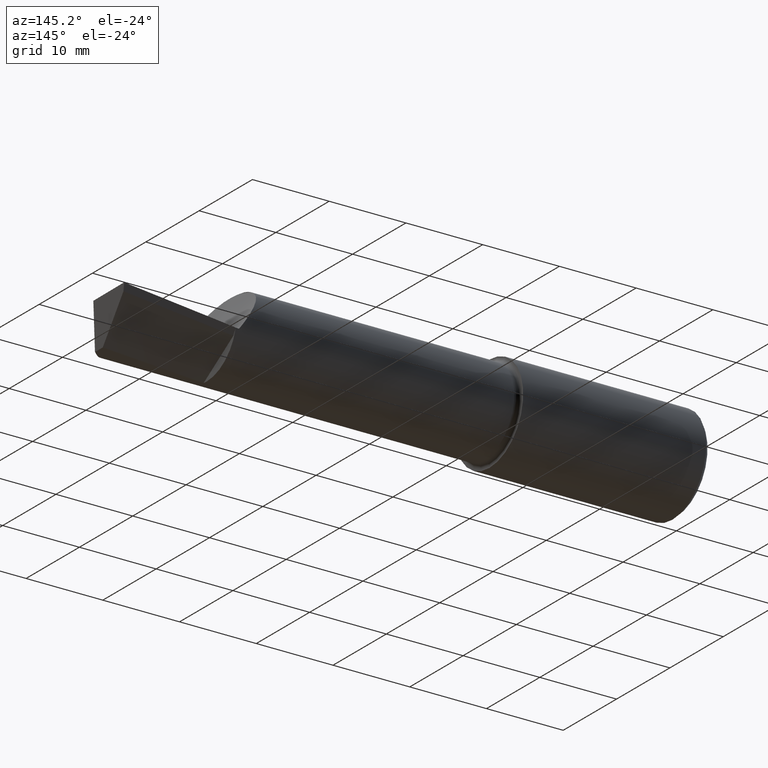
[diagram: clean part render]
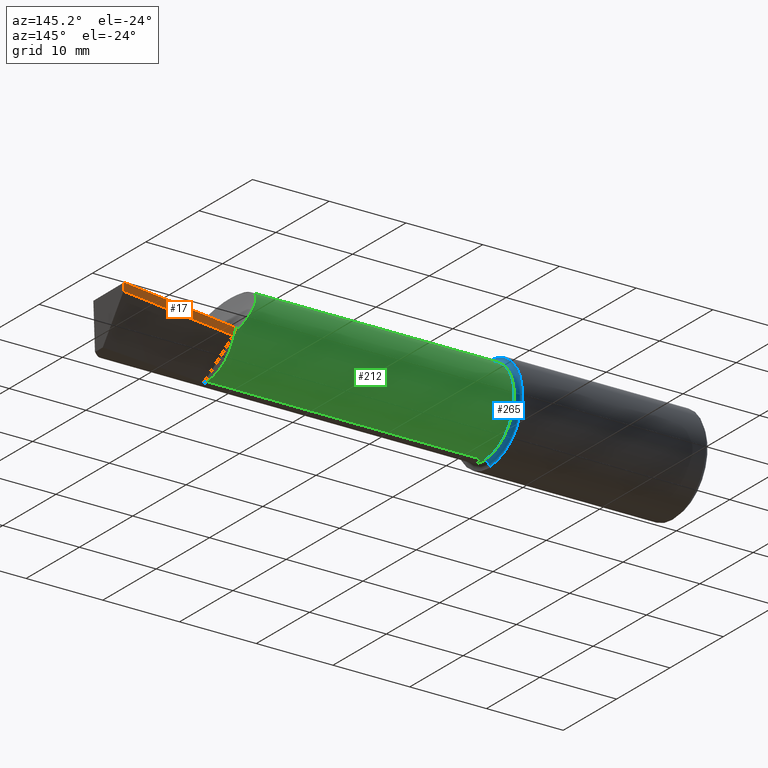
[diagram: same view with three faces highlighted in distinct colors, each labeled with its STEP entity id]
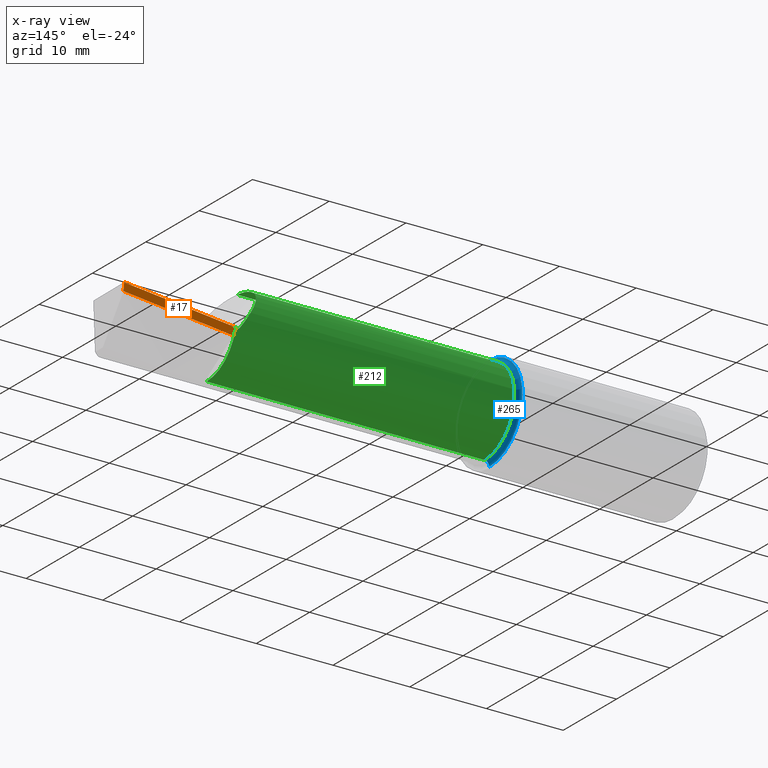
[diagram: x-ray of the same camera — body ghosted, the three highlighted faces saturated]
A machine part, auxiliary view with three faces highlighted in distinct colors.
The next image is the same camera in x-ray (body ghosted, the three faces saturated) — at least one of them is partly hidden behind the body in this view.
Their STEP definitions:

[orange] entity #17 — the highlighted face is a freeform B-spline surface patch.
#3 = CARTESIAN_POINT ( 'NONE',  ( 2.606666739029601665, 0.2256837431084287859, -0.03431182089004202601 ) ) ;
#12 = CARTESIAN_POINT ( 'NONE',  ( 2.410000000000000142, 0.2159144635021685021, -0.04897531016107510571 ) ) ;
#17 = ADVANCED_FACE ( 'NONE', ( #533 ), #124, .T. ) ;
#36 = CARTESIAN_POINT ( 'NONE',  ( 2.999444042726896686, 0.2388107301504568125, -0.004425444538990270550 ) ) ;
#48 = CARTESIAN_POINT ( 'NONE',  ( 2.410000000000000142, 0.2135228625924188994, -0.05299044395307118266 ) ) ;
#69 = VERTEX_POINT ( 'NONE', #555 ) ;
#71 = CARTESIAN_POINT ( 'NONE',  ( 2.418486830548867594, 0.2160475044874675399, -0.04882782362294733197 ) ) ;
#75 = CARTESIAN_POINT ( 'NONE',  ( 2.410000000000000142, 0.2159144635021685021, -0.04897531016107510571 ) ) ;
#85 = EDGE_CURVE ( 'NONE', #632, #273, #545, .T. ) ;
#91 = CARTESIAN_POINT ( 'NONE',  ( 2.415641684470006378, 0.2152245864486048432, -0.05019323217790304381 ) ) ;
#97 = CARTESIAN_POINT ( 'NONE',  ( 2.612381827555384728, 0.2257843348541355988, -0.03415235492857734284 ) ) ;
#124 = B_SPLINE_SURFACE_WITH_KNOTS ( 'NONE', 1, 3, ( 
 ( #410, #644, #3, #12 ),
 ( #126, #300, #243, #581 ) ),
 .UNSPECIFIED., .F., .F., .F.,
 ( 2, 2 ),
 ( 4, 4 ),
 ( 0.000000000000000000, 1.000000000000000000 ),
 ( 0.000000000000000000, 1.000000000000000000 ),
 .UNSPECIFIED. ) ;
#126 = CARTESIAN_POINT ( 'NONE',  ( 3.000000000000000444, 0.2288778106318485051, -0.03500000000000001027 ) ) ;
#141 = DIRECTION ( 'NONE',  ( 0.000000000000000000, -0.5117430001143385976, -0.8591385812742762251 ) ) ;
#149 = ORIENTED_EDGE ( 'NONE', *, *, #513, .F. ) ;
#157 = CARTESIAN_POINT ( 'NONE',  ( 2.410000000000000142, 0.1970817183423179408, -0.08059262188691969364 ) ) ;
#164 = VECTOR ( 'NONE', #141, 39.37007874015748143 ) ;
#213 = CARTESIAN_POINT ( 'NONE',  ( 2.605184837390462693, 0.2091104526375173189, -0.06742930688176083931 ) ) ;
#243 = CARTESIAN_POINT ( 'NONE',  ( 2.606666776175627920, 0.2092017806736846119, -0.06732936455371786588 ) ) ;
#244 = EDGE_CURVE ( 'NONE', #69, #273, #329, .T. ) ;
#253 = CARTESIAN_POINT ( 'NONE',  ( 2.806231657992947159, 0.2339654237526749281, -0.01788766252031828360 ) ) ;
#259 = EDGE_CURVE ( 'NONE', #326, #632, #653, .T. ) ;
#273 = VERTEX_POINT ( 'NONE', #614 ) ;
#300 = CARTESIAN_POINT ( 'NONE',  ( 2.803332917529201218, 0.2199919291099060870, -0.05201733606020176454 ) ) ;
#326 = VERTEX_POINT ( 'NONE', #71 ) ;
#327 = CARTESIAN_POINT ( 'NONE',  ( 2.995554176883931330, 0.2286766137360566054, -0.03538440047009819289 ) ) ;
#328 = CARTESIAN_POINT ( 'NONE',  ( 2.418486830548867594, 0.2160475044874675399, -0.04882782362294733197 ) ) ;
#329 = B_SPLINE_CURVE_WITH_KNOTS ( 'NONE', 3,
 ( #740, #443, #213, #157 ),
 .UNSPECIFIED., .F., .F.,
 ( 4, 4 ),
 ( 0.007535277762634916103, 1.000000000000000000 ),
 .UNSPECIFIED. ) ;
#337 = ORIENTED_EDGE ( 'NONE', *, *, #496, .F. ) ;
#378 = CARTESIAN_POINT ( 'NONE',  ( 3.000000000000000444, 0.2402499999999999636, 0.000000000000000000 ) ) ;
#410 = CARTESIAN_POINT ( 'NONE',  ( 3.000000000000000444, 0.2402499999999999636, 6.829619984160658046E-17 ) ) ;
#441 = CARTESIAN_POINT ( 'NONE',  ( 2.998888170757106675, 0.2373686809149639920, -0.008849996828388316875 ) ) ;
#443 = CARTESIAN_POINT ( 'NONE',  ( 2.800369049489945805, 0.2198292400657145818, -0.05224798050574936542 ) ) ;
#450 = ORIENTED_EDGE ( 'NONE', *, *, #244, .T. ) ;
#480 = CARTESIAN_POINT ( 'NONE',  ( 2.998332384698992659, 0.2359238552322683868, -0.01327365212251208071 ) ) ;
#496 = EDGE_CURVE ( 'NONE', #504, #326, #520, .T. ) ;
#500 = CARTESIAN_POINT ( 'NONE',  ( 2.996294878558302344, 0.2306141419735368570, -0.02948980456723944779 ) ) ;
#504 = VERTEX_POINT ( 'NONE', #378 ) ;
#513 = EDGE_CURVE ( 'NONE', #69, #504, #690, .T. ) ;
#520 = B_SPLINE_CURVE_WITH_KNOTS ( 'NONE', 3,
 ( #549, #253, #97, #728 ),
 .UNSPECIFIED., .F., .F.,
 ( 4, 4 ),
 ( 1.231178521876680363E-19, 0.01483563987091351954 ),
 .UNSPECIFIED. ) ;
#533 = FACE_OUTER_BOUND ( 'NONE', #616, .T. ) ;
#545 = LINE ( 'NONE', #75, #164 ) ;
#549 = CARTESIAN_POINT ( 'NONE',  ( 3.000000000000000444, 0.2402499999999999636, 0.000000000000000000 ) ) ;
#555 = CARTESIAN_POINT ( 'NONE',  ( 2.995554176883931330, 0.2286766137360566054, -0.03538440047009819289 ) ) ;
#559 = CARTESIAN_POINT ( 'NONE',  ( 2.412811562919334740, 0.2143837749633561718, -0.05157965173914631773 ) ) ;
#562 = CARTESIAN_POINT ( 'NONE',  ( 2.995924508398108976, 0.2296459939770620629, -0.03243730289249256715 ) ) ;
#568 = CARTESIAN_POINT ( 'NONE',  ( 2.410000000000000142, 0.2135228625924188994, -0.05299044395307118266 ) ) ;
#570 = ORIENTED_EDGE ( 'NONE', *, *, #259, .F. ) ;
#581 = CARTESIAN_POINT ( 'NONE',  ( 2.410000000000000142, 0.1970817183423179408, -0.08059262188691969364 ) ) ;
#611 = ORIENTED_EDGE ( 'NONE', *, *, #85, .F. ) ;
#612 = CARTESIAN_POINT ( 'NONE',  ( 2.997220900003097821, 0.2330314313508999036, -0.02212005370833393728 ) ) ;
#614 = CARTESIAN_POINT ( 'NONE',  ( 2.410000000000000142, 0.1970817183423179408, -0.08059262188691969364 ) ) ;
#616 = EDGE_LOOP ( 'NONE', ( #149, #450, #611, #570, #337 ) ) ;
#618 = CARTESIAN_POINT ( 'NONE',  ( 2.996665286806010187, 0.2315810568624991905, -0.02654190685166179023 ) ) ;
#632 = VERTEX_POINT ( 'NONE', #48 ) ;
#644 = CARTESIAN_POINT ( 'NONE',  ( 2.803332938693847698, 0.2339664105712556119, -0.01786286987449666602 ) ) ;
#653 = B_SPLINE_CURVE_WITH_KNOTS ( 'NONE', 3,
 ( #328, #91, #559, #568 ),
 .UNSPECIFIED., .F., .F.,
 ( 4, 4 ),
 ( 3.505408379411146765E-05, 0.0002835685499859401924 ),
 .UNSPECIFIED. ) ;
#690 = B_SPLINE_CURVE_WITH_KNOTS ( 'NONE', 3,
 ( #327, #562, #500, #618, #612, #735, #480, #441, #36, #731 ),
 .UNSPECIFIED., .F., .F.,
 ( 4, 3, 3, 4 ),
 ( 3.261629021661062871E-18, 0.0002380835754664463769, 0.0005952095077557110385, 0.0009523359941418505555 ),
 .UNSPECIFIED. ) ;
#728 = CARTESIAN_POINT ( 'NONE',  ( 2.418486830548867594, 0.2160475044874675399, -0.04882782362294733197 ) ) ;
#731 = CARTESIAN_POINT ( 'NONE',  ( 3.000000000000000444, 0.2402499999999999636, 0.000000000000000000 ) ) ;
#735 = CARTESIAN_POINT ( 'NONE',  ( 2.997776599503138684, 0.2344790317911101540, -0.01769730055367038646 ) ) ;
#740 = CARTESIAN_POINT ( 'NONE',  ( 2.995554176883931330, 0.2286766137360566054, -0.03538440047009819289 ) ) ;

[blue] entity #265 — the highlighted toroidal blend (fillet) surface has major radius 6.223 mm and minor (blend) radius 0.635 mm.
#2 = AXIS2_PLACEMENT_3D ( 'NONE', #455, #336, #50 ) ;
#33 = CARTESIAN_POINT ( 'NONE',  ( 0.9595250382262699995, 3.000384657911014877E-17, -0.2449999999999999956 ) ) ;
#34 = DIRECTION ( 'NONE',  ( 0.000000000000000000, -1.000000000000000000, 0.000000000000000000 ) ) ;
#50 = DIRECTION ( 'NONE',  ( 0.000000000000000000, 0.000000000000000000, 1.000000000000000000 ) ) ;
#54 = AXIS2_PLACEMENT_3D ( 'NONE', #160, #743, #106 ) ;
#56 = EDGE_CURVE ( 'NONE', #87, #556, #665, .T. ) ;
#87 = VERTEX_POINT ( 'NONE', #542 ) ;
#98 = DIRECTION ( 'NONE',  ( -1.000000000000000000, -0.000000000000000000, -0.000000000000000000 ) ) ;
#106 = DIRECTION ( 'NONE',  ( 0.000000000000000000, -1.224646799147353454E-16, 1.000000000000000000 ) ) ;
#123 = CARTESIAN_POINT ( 'NONE',  ( 0.9595250382262699995, 0.000000000000000000, 0.2449999999999999956 ) ) ;
#160 = CARTESIAN_POINT ( 'NONE',  ( 0.9845250382262700217, 3.000384657911014877E-17, -0.2449999999999999956 ) ) ;
#197 = CIRCLE ( 'NONE', #54, 0.02500000000000000486 ) ;
#208 = CARTESIAN_POINT ( 'NONE',  ( 0.9845250382262700217, 2.694222958124176637E-17, -0.2199999999999999734 ) ) ;
#216 = FACE_OUTER_BOUND ( 'NONE', #241, .T. ) ;
#241 = EDGE_LOOP ( 'NONE', ( #635, #268, #341, #537 ) ) ;
#247 = DIRECTION ( 'NONE',  ( -1.000000000000000000, -0.000000000000000000, -0.000000000000000000 ) ) ;
#265 = ADVANCED_FACE ( 'NONE', ( #216 ), #663, .F. ) ;
#268 = ORIENTED_EDGE ( 'NONE', *, *, #320, .F. ) ;
#269 = AXIS2_PLACEMENT_3D ( 'NONE', #276, #34, #517 ) ;
#275 = EDGE_CURVE ( 'NONE', #586, #556, #197, .T. ) ;
#276 = CARTESIAN_POINT ( 'NONE',  ( 0.9845250382262700217, 0.000000000000000000, 0.2449999999999999956 ) ) ;
#290 = EDGE_CURVE ( 'NONE', #377, #87, #331, .T. ) ;
#294 = AXIS2_PLACEMENT_3D ( 'NONE', #438, #98, #380 ) ;
#320 = EDGE_CURVE ( 'NONE', #377, #586, #640, .T. ) ;
#331 = CIRCLE ( 'NONE', #269, 0.02500000000000000486 ) ;
#336 = DIRECTION ( 'NONE',  ( -1.000000000000000000, -0.000000000000000000, -0.000000000000000000 ) ) ;
#341 = ORIENTED_EDGE ( 'NONE', *, *, #290, .T. ) ;
#377 = VERTEX_POINT ( 'NONE', #123 ) ;
#380 = DIRECTION ( 'NONE',  ( 0.000000000000000000, 0.000000000000000000, 1.000000000000000000 ) ) ;
#438 = CARTESIAN_POINT ( 'NONE',  ( 0.9845250382262700217, 0.000000000000000000, 0.000000000000000000 ) ) ;
#455 = CARTESIAN_POINT ( 'NONE',  ( 0.9595250382262699995, 0.000000000000000000, 0.000000000000000000 ) ) ;
#492 = DIRECTION ( 'NONE',  ( 0.000000000000000000, 0.000000000000000000, 1.000000000000000000 ) ) ;
#510 = AXIS2_PLACEMENT_3D ( 'NONE', #551, #247, #492 ) ;
#517 = DIRECTION ( 'NONE',  ( 0.000000000000000000, 0.000000000000000000, -1.000000000000000000 ) ) ;
#537 = ORIENTED_EDGE ( 'NONE', *, *, #56, .T. ) ;
#542 = CARTESIAN_POINT ( 'NONE',  ( 0.9845250382262700217, 0.000000000000000000, 0.2199999999999999734 ) ) ;
#551 = CARTESIAN_POINT ( 'NONE',  ( 0.9845250382262700217, 0.000000000000000000, 0.000000000000000000 ) ) ;
#556 = VERTEX_POINT ( 'NONE', #208 ) ;
#586 = VERTEX_POINT ( 'NONE', #33 ) ;
#635 = ORIENTED_EDGE ( 'NONE', *, *, #275, .F. ) ;
#640 = CIRCLE ( 'NONE', #2, 0.2449999999999999956 ) ;
#663 = TOROIDAL_SURFACE ( 'NONE', #294, 0.2449999999999999956, 0.02500000000000000486 ) ;
#665 = CIRCLE ( 'NONE', #510, 0.2199999999999999734 ) ;
#743 = DIRECTION ( 'NONE',  ( -0.000000000000000000, 1.000000000000000000, 1.224646799147353207E-16 ) ) ;

[green] entity #212 — the highlighted cylindrical surface (partial cylindrical patch) has radius 5.588 mm, axis along (-1, -0, -0).
#7 = CARTESIAN_POINT ( 'NONE',  ( 0.000000000000000000, 0.000000000000000000, 0.2199999999999999734 ) ) ;
#8 = B_SPLINE_CURVE_WITH_KNOTS ( 'NONE', 3,
 ( #174, #519, #215, #451, #159, #392, #218, #625, #45 ),
 .UNSPECIFIED., .F., .F.,
 ( 4, 2, 1, 1, 1, 4 ),
 ( 0.9276727079954698585, 0.9321931637457528952, 0.9367136194960358209, 0.9457545309966022273, 0.9638363539977349292, 1.000000000000000000 ),
 .UNSPECIFIED. ) ;
#10 = CARTESIAN_POINT ( 'NONE',  ( 2.341349125908411821, 0.2183424038738380479, 0.02700579478127015584 ) ) ;
#15 = ORIENTED_EDGE ( 'NONE', *, *, #629, .T. ) ;
#16 = CARTESIAN_POINT ( 'NONE',  ( 2.303450587856114229, 0.2017322369564549522, 0.08777317349639240929 ) ) ;
#23 = DIRECTION ( 'NONE',  ( 1.000000000000000000, -0.000000000000000000, -0.000000000000000000 ) ) ;
#26 = CIRCLE ( 'NONE', #343, 0.2199999999999999734 ) ;
#28 = AXIS2_PLACEMENT_3D ( 'NONE', #669, #191, #376 ) ;
#45 = CARTESIAN_POINT ( 'NONE',  ( 2.250000000000000444, 0.02296396303119626128, 0.2187982093206017054 ) ) ;
#46 = CARTESIAN_POINT ( 'NONE',  ( 0.000000000000000000, 0.000000000000000000, 0.000000000000000000 ) ) ;
#48 = CARTESIAN_POINT ( 'NONE',  ( 2.410000000000000142, 0.2135228625924188994, -0.05299044395307118266 ) ) ;
#56 = EDGE_CURVE ( 'NONE', #87, #556, #665, .T. ) ;
#58 = DIRECTION ( 'NONE',  ( 0.000000000000000000, 0.000000000000000000, 1.000000000000000000 ) ) ;
#60 =( BOUNDED_CURVE ( )  B_SPLINE_CURVE ( 2, ( #388, #372, #670 ),
 .UNSPECIFIED., .F., .F. ) 
 B_SPLINE_CURVE_WITH_KNOTS ( ( 3, 3 ),
 ( 0.5266614230579080846, 0.5400257304258027080 ),
 .UNSPECIFIED. ) 
 CURVE ( )  GEOMETRIC_REPRESENTATION_ITEM ( )  RATIONAL_B_SPLINE_CURVE ( ( 0.9955652346528232055, 0.9953917806560831361, 0.9952287059344254727 ) ) 
 REPRESENTATION_ITEM ( '' )  );
#72 = VERTEX_POINT ( 'NONE', #201 ) ;
#73 = CARTESIAN_POINT ( 'NONE',  ( 2.303082447116823417, 0.2014617548662014646, 0.08839233498446039117 ) ) ;
#87 = VERTEX_POINT ( 'NONE', #542 ) ;
#100 = EDGE_CURVE ( 'NONE', #632, #111, #357, .T. ) ;
#107 = VERTEX_POINT ( 'NONE', #729 ) ;
#108 = CARTESIAN_POINT ( 'NONE',  ( 2.268323433205456485, 0.1590487263599171808, 0.1519989609637909245 ) ) ;
#111 = VERTEX_POINT ( 'NONE', #135 ) ;
#116 = DIRECTION ( 'NONE',  ( -1.000000000000000000, -0.000000000000000000, -0.000000000000000000 ) ) ;
#122 = CARTESIAN_POINT ( 'NONE',  ( 2.377263106783647828, 0.2194462568404665082, -0.02799947325392306702 ) ) ;
#125 = CIRCLE ( 'NONE', #381, 0.2200000000000000011 ) ;
#130 = CARTESIAN_POINT ( 'NONE',  ( 2.392944745247169713, 0.2140968924730453637, -0.05062134562993372833 ) ) ;
#135 = CARTESIAN_POINT ( 'NONE',  ( 2.410000000000000142, 2.694222958124177561E-17, -0.2200000000000000011 ) ) ;
#151 = VECTOR ( 'NONE', #466, 39.37007874015748143 ) ;
#159 = CARTESIAN_POINT ( 'NONE',  ( 2.252520733773949679, 0.003396144702150293883, 0.2199775199475225707 ) ) ;
#161 = ORIENTED_EDGE ( 'NONE', *, *, #100, .T. ) ;
#162 = CARTESIAN_POINT ( 'NONE',  ( 2.253785031901272884, 0.1187834096907069842, 0.1856707252788643292 ) ) ;
#166 = ORIENTED_EDGE ( 'NONE', *, *, #369, .F. ) ;
#171 = CARTESIAN_POINT ( 'NONE',  ( 0.000000000000000000, 2.694222958124176637E-17, -0.2199999999999999734 ) ) ;
#174 = CARTESIAN_POINT ( 'NONE',  ( 2.253048836201134275, -1.183062825732959087E-06, 0.2200124226379089609 ) ) ;
#175 = AXIS2_PLACEMENT_3D ( 'NONE', #46, #449, #398 ) ;
#184 = CARTESIAN_POINT ( 'NONE',  ( 2.289897884054996613, 0.1899916407718323097, 0.1111104138017083298 ) ) ;
#189 = ORIENTED_EDGE ( 'NONE', *, *, #734, .T. ) ;
#190 = CARTESIAN_POINT ( 'NONE',  ( 2.361872680313165329, 0.2211791025387656040, -0.004520542396873753269 ) ) ;
#191 = DIRECTION ( 'NONE',  ( -1.000000000000000000, -0.000000000000000000, -0.000000000000000000 ) ) ;
#200 = DIRECTION ( 'NONE',  ( 0.000000000000000000, -2.664535259100375697E-15, 1.000000000000000000 ) ) ;
#201 = CARTESIAN_POINT ( 'NONE',  ( 2.250000000000000444, 0.09504805913229114056, 0.1984083326253826274 ) ) ;
#208 = CARTESIAN_POINT ( 'NONE',  ( 0.9845250382262700217, 2.694222958124176637E-17, -0.2199999999999999734 ) ) ;
#212 = ADVANCED_FACE ( 'NONE', ( #389 ), #385, .T. ) ;
#215 = CARTESIAN_POINT ( 'NONE',  ( 2.252899803584523575, 0.0009714720314215125529, 0.2199983901436112776 ) ) ;
#218 = CARTESIAN_POINT ( 'NONE',  ( 2.251069953674378787, 0.01350924812413161445, 0.2196435465291612099 ) ) ;
#221 = VERTEX_POINT ( 'NONE', #679 ) ;
#222 = CARTESIAN_POINT ( 'NONE',  ( 2.258515655996602867, 0.1351780063360110973, 0.1737028663086875591 ) ) ;
#234 = CARTESIAN_POINT ( 'NONE',  ( 2.330111283526375754, 0.2155380220858995610, 0.04454306593681171822 ) ) ;
#239 = EDGE_LOOP ( 'NONE', ( #161, #561, #250, #166, #263, #597, #189, #523, #15 ) ) ;
#247 = DIRECTION ( 'NONE',  ( -1.000000000000000000, -0.000000000000000000, -0.000000000000000000 ) ) ;
#248 = CARTESIAN_POINT ( 'NONE',  ( 2.268791352084497781, 0.1599650663951522611, 0.1510341587815113018 ) ) ;
#250 = ORIENTED_EDGE ( 'NONE', *, *, #56, .F. ) ;
#263 = ORIENTED_EDGE ( 'NONE', *, *, #724, .T. ) ;
#286 = CARTESIAN_POINT ( 'NONE',  ( 2.253048836201134275, -1.183062825732959087E-06, 0.2200124226379089609 ) ) ;
#289 = VERTEX_POINT ( 'NONE', #671 ) ;
#293 = CARTESIAN_POINT ( 'NONE',  ( 2.346537449119416863, 0.2191775090838471718, 0.01900924779463712341 ) ) ;
#312 = CARTESIAN_POINT ( 'NONE',  ( 2.250000000000000444, 0.000000000000000000, 0.000000000000000000 ) ) ;
#338 = CARTESIAN_POINT ( 'NONE',  ( 2.268622416054464352, 0.1596362058502311942, 0.1513818459146487605 ) ) ;
#343 = AXIS2_PLACEMENT_3D ( 'NONE', #312, #23, #200 ) ;
#354 = CARTESIAN_POINT ( 'NONE',  ( 2.336129437027310907, 0.2172026737800319962, 0.03511665452094177298 ) ) ;
#357 = CIRCLE ( 'NONE', #28, 0.2200000000000000011 ) ;
#362 = CARTESIAN_POINT ( 'NONE',  ( 2.278168894559946089, 0.1761411732434127464, 0.1324183139899762773 ) ) ;
#369 = EDGE_CURVE ( 'NONE', #718, #87, #591, .T. ) ;
#372 = CARTESIAN_POINT ( 'NONE',  ( 2.401469481609322276, 0.2142601318164511770, -0.04993094446185698809 ) ) ;
#376 = DIRECTION ( 'NONE',  ( 0.000000000000000000, 0.000000000000000000, 1.000000000000000000 ) ) ;
#381 = AXIS2_PLACEMENT_3D ( 'NONE', #636, #116, #58 ) ;
#385 = CYLINDRICAL_SURFACE ( 'NONE', #175, 0.2199999999999999734 ) ;
#388 = CARTESIAN_POINT ( 'NONE',  ( 2.392944745247169713, 0.2140968924730453637, -0.05062134562993372833 ) ) ;
#389 = FACE_OUTER_BOUND ( 'NONE', #239, .T. ) ;
#392 = CARTESIAN_POINT ( 'NONE',  ( 2.252011678586734789, 0.006780167464589080019, 0.2199103442296859445 ) ) ;
#396 = CARTESIAN_POINT ( 'NONE',  ( 2.260302850203078862, 0.1404692177818628873, 0.1694536208928248411 ) ) ;
#398 = DIRECTION ( 'NONE',  ( 0.000000000000000000, 0.000000000000000000, 1.000000000000000000 ) ) ;
#417 = CARTESIAN_POINT ( 'NONE',  ( 2.286822331381985318, 0.1866629217514892136, 0.1166063220459159083 ) ) ;
#420 = CARTESIAN_POINT ( 'NONE',  ( 2.294797823663011549, 0.1946680960171416341, 0.1025422805366199841 ) ) ;
#449 = DIRECTION ( 'NONE',  ( -1.000000000000000000, -0.000000000000000000, -0.000000000000000000 ) ) ;
#451 = CARTESIAN_POINT ( 'NONE',  ( 2.252747084439407743, 0.001941860339961221614, 0.2199919648580568043 ) ) ;
#459 = CARTESIAN_POINT ( 'NONE',  ( 2.264876125876234436, 0.1518534575458587998, 0.1592507360764039703 ) ) ;
#466 = DIRECTION ( 'NONE',  ( -1.000000000000000000, -0.000000000000000000, -0.000000000000000000 ) ) ;
#467 = B_SPLINE_CURVE_WITH_KNOTS ( 'NONE', 3,
 ( #747, #686, #162, #222, #396, #630, #459, #696, #692, #108, #338, #248, #530, #362, #417, #184, #420, #658, #600, #712, #538, #73, #759, #16, #487, #719, #593, #234, #354, #655, #10, #471, #482, #650, #705, #293, #190, #122, #130 ),
 .UNSPECIFIED., .F., .F.,
 ( 4, 2, 2, 1, 1, 1, 2, 2, 2, 2, 1, 1, 1, 1, 2, 2, 2, 2, 2, 1, 1, 2, 2, 4 ),
 ( 0.000000000000000000, 0.1249999999999966971, 0.1874999999999950595, 0.2187499999999939215, 0.2343749999999936717, 0.2421874999999936440, 0.2460937499999936440, 0.2499999999999936162, 0.3749999999999980571, 0.4375000000000009437, 0.4687500000000022760, 0.4843750000000023870, 0.4921875000000024980, 0.4960937500000029976, 0.4980468750000033307, 0.5000000000000036637, 0.6250000000000092149, 0.6875000000000125455, 0.7187500000000143219, 0.7343750000000156541, 0.7421875000000163203, 0.7460937500000166533, 0.7500000000000169864, 1.000000000000000000 ),
 .UNSPECIFIED. ) ;
#471 = CARTESIAN_POINT ( 'NONE',  ( 2.342949552235358723, 0.2186394009669326288, 0.02453030179457149282 ) ) ;
#482 = CARTESIAN_POINT ( 'NONE',  ( 2.344850277066562683, 0.2189397232252878467, 0.02160200614134091465 ) ) ;
#487 = CARTESIAN_POINT ( 'NONE',  ( 2.309107083977436581, 0.2058594515306479689, 0.07826862847857296579 ) ) ;
#492 = DIRECTION ( 'NONE',  ( 0.000000000000000000, 0.000000000000000000, 1.000000000000000000 ) ) ;
#510 = AXIS2_PLACEMENT_3D ( 'NONE', #551, #247, #492 ) ;
#519 = CARTESIAN_POINT ( 'NONE',  ( 2.252989359298704475, 0.0004094560187714922726, 0.2200000003197545573 ) ) ;
#523 = ORIENTED_EDGE ( 'NONE', *, *, #543, .T. ) ;
#530 = CARTESIAN_POINT ( 'NONE',  ( 2.273164231607913255, 0.1684140353893805730, 0.1420550892562199574 ) ) ;
#538 = CARTESIAN_POINT ( 'NONE',  ( 2.302742053925485255, 0.2012100239217639308, 0.08896533452430119282 ) ) ;
#542 = CARTESIAN_POINT ( 'NONE',  ( 0.9845250382262700217, 0.000000000000000000, 0.2199999999999999734 ) ) ;
#543 = EDGE_CURVE ( 'NONE', #289, #107, #60, .T. ) ;
#551 = CARTESIAN_POINT ( 'NONE',  ( 0.9845250382262700217, 0.000000000000000000, 0.000000000000000000 ) ) ;
#556 = VERTEX_POINT ( 'NONE', #208 ) ;
#561 = ORIENTED_EDGE ( 'NONE', *, *, #700, .T. ) ;
#579 = DIRECTION ( 'NONE',  ( -1.000000000000000000, -0.000000000000000000, -0.000000000000000000 ) ) ;
#590 = EDGE_CURVE ( 'NONE', #72, #221, #26, .T. ) ;
#591 = LINE ( 'NONE', #7, #716 ) ;
#593 = CARTESIAN_POINT ( 'NONE',  ( 2.326303742156072829, 0.2141922380105713009, 0.05056821540890577005 ) ) ;
#597 = ORIENTED_EDGE ( 'NONE', *, *, #590, .F. ) ;
#600 = CARTESIAN_POINT ( 'NONE',  ( 2.300386731116056183, 0.1994133129509640390, 0.09294706894654843066 ) ) ;
#625 = CARTESIAN_POINT ( 'NONE',  ( 2.250393707398774090, 0.01920438848278122404, 0.2191927973443293376 ) ) ;
#629 = EDGE_CURVE ( 'NONE', #107, #632, #125, .T. ) ;
#630 = CARTESIAN_POINT ( 'NONE',  ( 2.263299120774840301, 0.1481083136068587214, 0.1627128149071755681 ) ) ;
#632 = VERTEX_POINT ( 'NONE', #48 ) ;
#636 = CARTESIAN_POINT ( 'NONE',  ( 2.410000000000000142, 0.000000000000000000, 0.000000000000000000 ) ) ;
#650 = CARTESIAN_POINT ( 'NONE',  ( 2.345672065019172248, 0.2190582683874621184, 0.02033850287372316462 ) ) ;
#655 = CARTESIAN_POINT ( 'NONE',  ( 2.338186628435204195, 0.2176984924494580476, 0.03190986540132281779 ) ) ;
#658 = CARTESIAN_POINT ( 'NONE',  ( 2.297319446116642183, 0.1969271478189809910, 0.09817724510293396323 ) ) ;
#665 = CIRCLE ( 'NONE', #510, 0.2199999999999999734 ) ;
#669 = CARTESIAN_POINT ( 'NONE',  ( 2.410000000000000142, 0.000000000000000000, 0.000000000000000000 ) ) ;
#670 = CARTESIAN_POINT ( 'NONE',  ( 2.410000000000000142, 0.2144189151190963039, -0.04923950486296325285 ) ) ;
#671 = CARTESIAN_POINT ( 'NONE',  ( 2.392944745247169713, 0.2140968924730453637, -0.05062134562993372833 ) ) ;
#679 = CARTESIAN_POINT ( 'NONE',  ( 2.250000000000000444, 0.02296396303119626128, 0.2187982093206017054 ) ) ;
#686 = CARTESIAN_POINT ( 'NONE',  ( 2.251472560536515566, 0.1071583420974421691, 0.1926068782975518534 ) ) ;
#692 = CARTESIAN_POINT ( 'NONE',  ( 2.267877423613676946, 0.1581649231382564469, 0.1529219638397307235 ) ) ;
#696 = CARTESIAN_POINT ( 'NONE',  ( 2.266853987338338428, 0.1560847454646867583, 0.1550568531508035031 ) ) ;
#700 = EDGE_CURVE ( 'NONE', #111, #556, #756, .T. ) ;
#705 = CARTESIAN_POINT ( 'NONE',  ( 2.346221521786773234, 0.2191350097120721985, 0.01949428548441474451 ) ) ;
#712 = CARTESIAN_POINT ( 'NONE',  ( 2.301951721649974303, 0.2006176853541204175, 0.09029816438343203633 ) ) ;
#716 = VECTOR ( 'NONE', #579, 39.37007874015748143 ) ;
#718 = VERTEX_POINT ( 'NONE', #286 ) ;
#719 = CARTESIAN_POINT ( 'NONE',  ( 2.315494800936122033, 0.2096186112504898336, 0.06783711927765630201 ) ) ;
#724 = EDGE_CURVE ( 'NONE', #718, #221, #8, .T. ) ;
#729 = CARTESIAN_POINT ( 'NONE',  ( 2.410000000000000142, 0.2144189151190963039, -0.04923950486296325285 ) ) ;
#734 = EDGE_CURVE ( 'NONE', #72, #289, #467, .T. ) ;
#747 = CARTESIAN_POINT ( 'NONE',  ( 2.250000000000000444, 0.09504805913229114056, 0.1984083326253826274 ) ) ;
#756 = LINE ( 'NONE', #171, #151 ) ;
#759 = CARTESIAN_POINT ( 'NONE',  ( 2.303309749101932091, 0.2016291004824107280, 0.08800993919114154240 ) ) ;